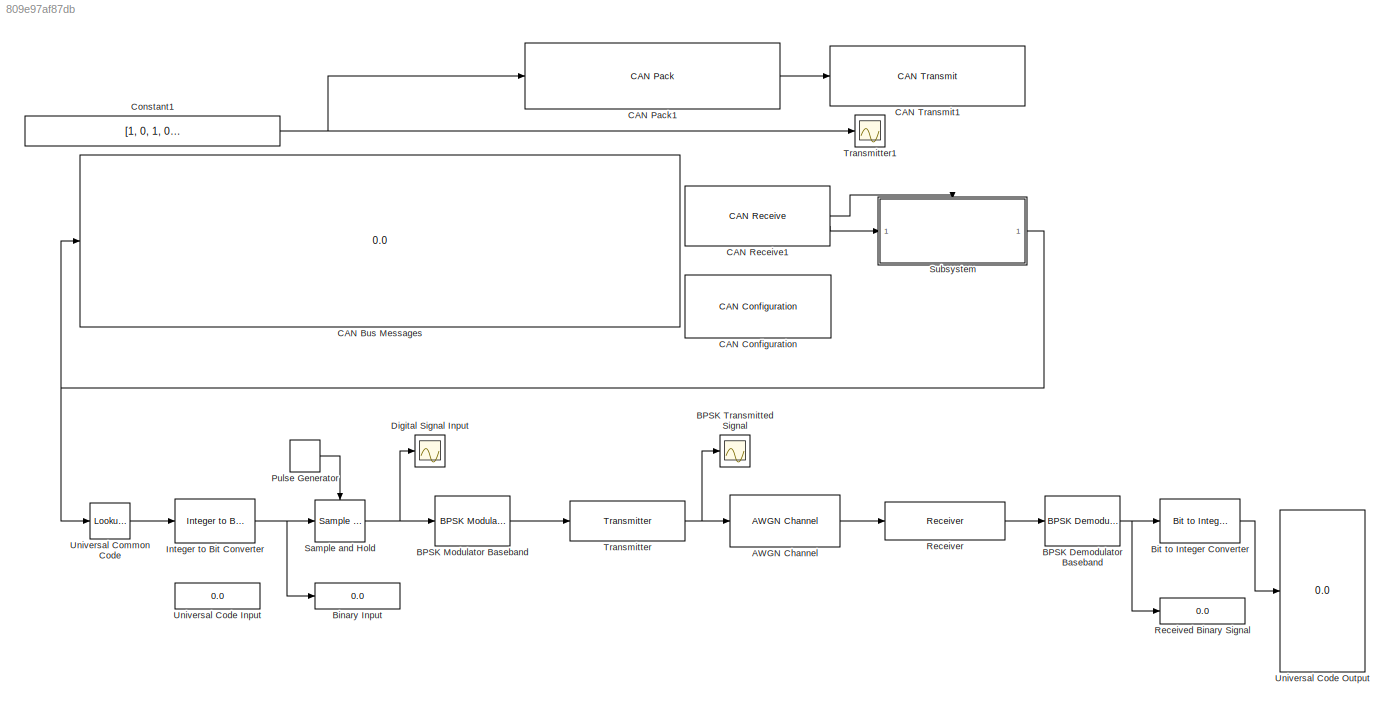
MODEL slx_809e97af87db
KIND model
CONFIG AbsTol = auto
CONFIG EnableMultiTasking = off
CONFIG FixedStep = auto
CONFIG MaxStep = auto
CONFIG MinStep = auto
CONFIG RelTol = 1e-3
CONFIG SampleTimeConstraint = Unconstrained
CONFIG SolverName = VariableStepAuto
CONFIG StartTime = 0.0
CONFIG StopTime = 10.0
BLOCK [Reference] AWGN Channel  REF=commchan3/AWGN
Channel
  SourceBlock = commchan3/AWGN\nChannel
  SourceType = AWGN Channel
BLOCK [Reference] BPSK Demodulator Baseband  REF=commdigbbndpm3/BPSK
Demodulator
Baseband
  SourceBlock = commdigbbndpm3/BPSK\nDemodulator\nBaseband
  SourceType = BPSK Demodulator Baseband
BLOCK [Reference] BPSK Modulator Baseband  REF=commdigbbndpm3/BPSK
Modulator
Baseband
  SourceBlock = commdigbbndpm3/BPSK\nModulator\nBaseband
  SourceType = BPSK Modulator Baseband
BLOCK [Scope] BPSK Transmitted Signal
  Floating = off
  NumInputPorts = 1
  ScopeSpecificationString = Simulink.scopes.TimeScopeBlockCfg('CurrentConfiguration', extmgr.ConfigurationSet(extmgr.Configuration('Core','General UI',true),extmgr.Configuration('Core','Source UI',true),extmgr.Configuration('Sources','WiredSimulink',true),extmgr.Configuration('Visuals','Time Domain',true,'SerializedDisplays',{struct('MinYLimReal','-1.25','MaxYLimReal','1.25','YLabelReal','','MinYLimMag','0.00000','MaxYLimMag...<+1490ch>
BLOCK [Display] Binary Input
  Decimation = 1
BLOCK [Reference] Bit to Integer Converter  REF=simulink/Logic and Bit
Operations/Bit to Integer
Converter
  SourceBlock = simulink/Logic and Bit\nOperations/Bit to Integer\nConverter
  SourceType = Bit to Integer Converter
BLOCK [Display] CAN Bus Messages
  Decimation = 1
BLOCK [Reference] CAN Configuration  REF=canlib/CAN Configuration
  SourceBlock = canlib/CAN Configuration
  SourceType = CAN Configuration
BLOCK [Reference] CAN Pack1  REF=canmsglib/CAN Pack
  LibrarySourceBlock = canlib/CAN Pack
  SourceBlock = canmsglib/CAN Pack
  SourceType = CAN Pack
BLOCK [Reference] CAN Receive1  REF=canlib/CAN Receive
  SourceBlock = canlib/CAN Receive
  SourceType = CAN Receive
BLOCK [Reference] CAN Transmit1  REF=canlib/CAN Transmit
  SourceBlock = canlib/CAN Transmit
  SourceType = CAN Transmit
BLOCK [Constant] Constant1
  OutDataTypeStr = uint8
  SampleTime = 0.01
  Value = [1, 0, 1, 0 , 1, 0, 1, 0]
BLOCK [Scope] Digital Signal Input
  Floating = off
  NumInputPorts = 1
  ScopeSpecificationString = Simulink.scopes.TimeScopeBlockCfg('CurrentConfiguration', extmgr.ConfigurationSet(extmgr.Configuration('Core','General UI',true),extmgr.Configuration('Core','Source UI',true),extmgr.Configuration('Sources','WiredSimulink',true,'DataLoggingVariableName','ScopeData1'),extmgr.Configuration('Visuals','Time Domain',true,'SerializedDisplays',{struct('MinYLimReal','-1.25','MaxYLimReal','1.25','YLabelReal...<+1529ch>
BLOCK [Reference] Integer to Bit Converter  REF=simulink/Logic and Bit
Operations/Integer to Bit
Converter
  SourceBlock = simulink/Logic and Bit\nOperations/Integer to Bit\nConverter
  SourceType = Integer to Bit Converter
BLOCK [DiscretePulseGenerator] Pulse Generator
  Period = 1
  PulseType = Time based
  PulseWidth = 10
BLOCK [Display] Received Binary Signal
  Decimation = 1
BLOCK [Reference] Receiver  REF=phasedtxrxlib/Receiver
  SourceBlock = phasedtxrxlib/Receiver
  SourceType = phased.internal.SimulinkReceiver
BLOCK [Reference] Sample and Hold  REF=dspsigops/Sample
and Hold
  SourceBlock = dspsigops/Sample\nand Hold
  SourceType = Sample and Hold
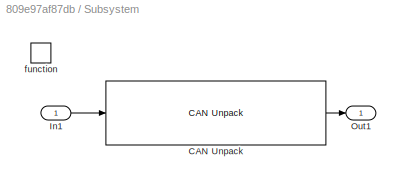
BLOCK [SubSystem] Subsystem
BLOCK [Reference] Subsystem/CAN Unpack  REF=canmsglib/CAN Unpack
  LibrarySourceBlock = canlib/CAN Unpack
  SourceBlock = canmsglib/CAN Unpack
  SourceType = CAN Unpack
BLOCK [Inport] Subsystem/In1
BLOCK [Outport] Subsystem/Out1
BLOCK [TriggerPort] Subsystem/function
  StatesWhenEnabling = held
  TriggerType = function-call
  VariantControl = (inherit)
BLOCK [Reference] Transmitter  REF=phasedtxrxlib/Transmitter
  SourceBlock = phasedtxrxlib/Transmitter
  SourceType = phased.internal.SimulinkTransmitter
BLOCK [Scope] Transmitter1
  Floating = off
  NumInputPorts = 1
  ScopeSpecificationString = Simulink.scopes.TimeScopeBlockCfg('CurrentConfiguration', extmgr.ConfigurationSet(extmgr.Configuration('Core','General UI',true),extmgr.Configuration('Core','Source UI',true),extmgr.Configuration('Sources','WiredSimulink',true,'DataLoggingVariableName','ScopeData2','DataLogging',true,'DataLoggingSaveFormat','Array'),extmgr.Configuration('Visuals','Time Domain',true,'SerializedDisplays',{struct('Mi...<+1615ch>
BLOCK [Display] Universal Code Input
  Decimation = 1
BLOCK [Display] Universal Code Output
  Decimation = 1
BLOCK [Lookup_n-D] Universal Common Code       
  BreakpointsForDimension1 = [0:49]
  BreakpointsForDimension1DataTypeStr = uint8
  InputPortMap = u0
  InputSameDT = off
  InternalRulePriority = Speed
  InterpMethod = Flat
  NumberOfTableDimensions = 1
  OutDataTypeStr = double
  RndMeth = Simplest
  Table = [2;0;0;0;10;0;0;0;0;20;0;0;0;0;30;0;0;0;0;40;0;0;0;0;50;0;0;0;0;60;0;0;0;0;70;0;0;0;0;80;0;0;0;0;90;0;0;0;0;100]
  TableDataTypeStr = uint8
  UseOneInputPortForAllInputData = on
LINE AWGN Channel:1 -> Receiver:1
NET BPSK Demodulator Baseband:1 -> Bit to Integer Converter:1, Received Binary Signal:1
LINE BPSK Modulator Baseband:1 -> Transmitter:1
LINE Bit to Integer Converter:1 -> Universal Code Output:1
LINE CAN Pack1:1 -> CAN Transmit1:1
LINE CAN Receive1:1 -> Subsystem:trigger
LINE CAN Receive1:2 -> Subsystem:1
NET Constant1:1 -> CAN Pack1:1, Transmitter1:1
NET Integer to Bit Converter:1 -> Binary Input:1, Sample and Hold:1
LINE Pulse Generator:1 -> Sample and Hold:trigger
LINE Receiver:1 -> BPSK Demodulator Baseband:1
NET Sample and Hold:1 -> BPSK Modulator Baseband:1, Digital Signal Input:1
LINE Subsystem/CAN Unpack:1 -> Subsystem/Out1:1
LINE Subsystem/In1:1 -> Subsystem/CAN Unpack:1
NET Subsystem:1 -> CAN Bus Messages:1, Universal Common Code       :1
NET Transmitter:1 -> AWGN Channel:1, BPSK Transmitted Signal:1
LINE Universal Common Code       :1 -> Integer to Bit Converter:1
note: NET lines group one-source signal fan-out (src -> all destinations, sorted); 1:1 wires keep LINE
